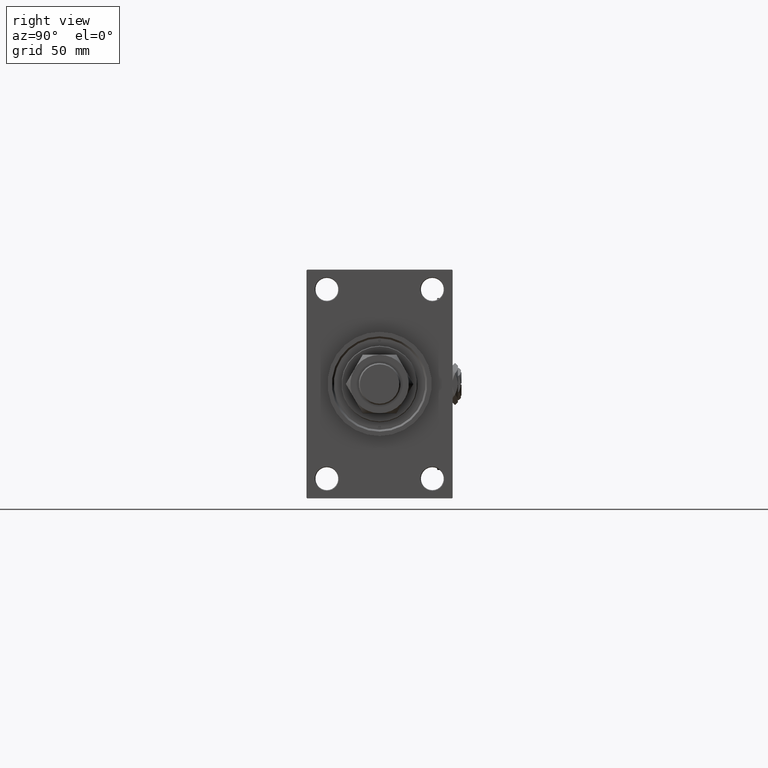
[diagram: clean part render]
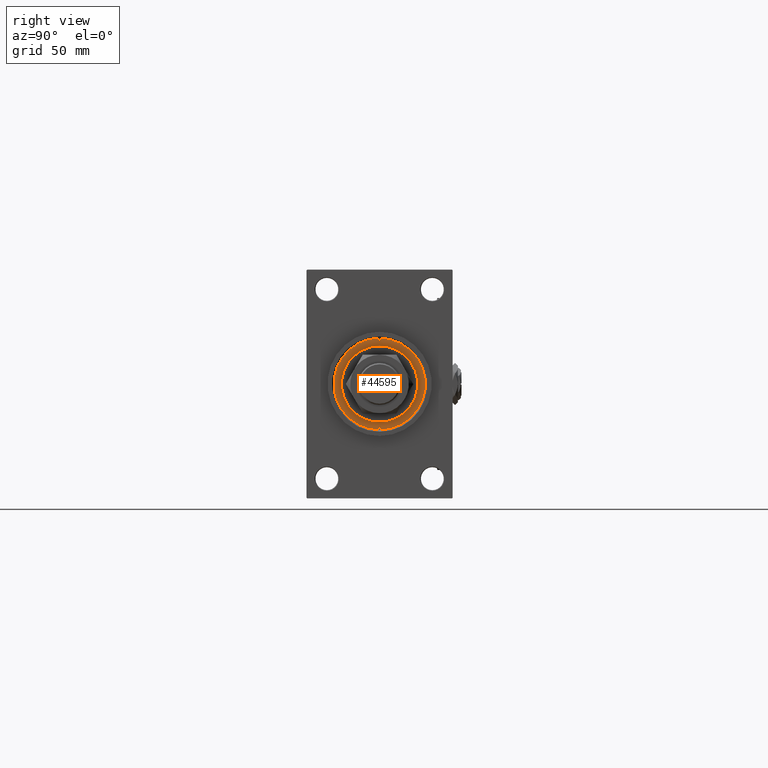
[diagram: same view with one face highlighted and labeled with its STEP entity id]
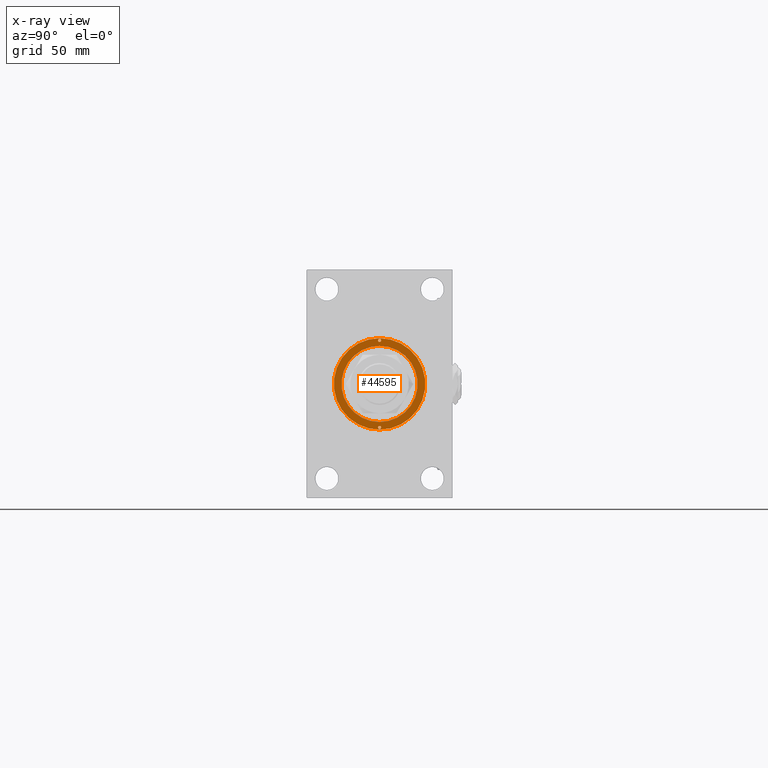
[diagram: x-ray of the same camera — body ghosted, the highlighted face saturated]
A machine part, right view. The second image highlights one B-rep face of the part: STEP entity #44595.
The next image is the same camera in x-ray: the body ghosted, the highlighted face saturated — about 0% of this face is hidden behind the body in this view.
In plain terms, the highlighted planar face has unit normal (1, -0, -0).
Its self-contained STEP definition (entity closure, byte-faithful):
#99 = EDGE_LOOP ( 'NONE', ( #2801, #871 ) ) ;
#619 = CARTESIAN_POINT ( 'NONE',  ( 34.25000000000000000, 0.000000000000000000, 43.25999999999999801 ) ) ;
#871 = ORIENTED_EDGE ( 'NONE', *, *, #39122, .F. ) ;
#1921 = CARTESIAN_POINT ( 'NONE',  ( -34.25000000000000000, 0.000000000000000000, 43.25999999999999801 ) ) ;
#2767 = DIRECTION ( 'NONE',  ( 1.000000000000000000, 0.000000000000000000, 0.000000000000000000 ) ) ;
#2801 = ORIENTED_EDGE ( 'NONE', *, *, #38970, .F. ) ;
#2829 = CARTESIAN_POINT ( 'NONE',  ( -36.00000000000000000, 0.000000000000000000, 43.25999999999999801 ) ) ;
#3392 = EDGE_LOOP ( 'NONE', ( #40292, #30570 ) ) ;
#3524 = CIRCLE ( 'NONE', #33991, 1.250000000000001110 ) ;
#3530 = CARTESIAN_POINT ( 'NONE',  ( 33.00000000000000000, 1.530808498934193050E-16, 43.25999999999999801 ) ) ;
#3589 = CARTESIAN_POINT ( 'NONE',  ( 30.00000000000000000, 3.673940397442059178E-15, 43.25999999999999801 ) ) ;
#4870 = CARTESIAN_POINT ( 'NONE',  ( -34.25000000000000000, 0.000000000000000000, 43.25999999999999801 ) ) ;
#5024 = ORIENTED_EDGE ( 'NONE', *, *, #41049, .F. ) ;
#5936 = CARTESIAN_POINT ( 'NONE',  ( 35.50000000000000711, 0.000000000000000000, 43.25999999999999801 ) ) ;
#6565 = AXIS2_PLACEMENT_3D ( 'NONE', #11411, #53616, #16041 ) ;
#6864 = CARTESIAN_POINT ( 'NONE',  ( 0.000000000000000000, 0.000000000000000000, 43.25999999999999801 ) ) ;
#7592 = FACE_BOUND ( 'NONE', #22785, .T. ) ;
#8064 = VERTEX_POINT ( 'NONE', #9130 ) ;
#8121 = FACE_BOUND ( 'NONE', #43699, .T. ) ;
#8417 = EDGE_CURVE ( 'NONE', #9838, #15411, #3524, .T. ) ;
#8653 = DIRECTION ( 'NONE',  ( 1.000000000000000000, 0.000000000000000000, 0.000000000000000000 ) ) ;
#8684 = DIRECTION ( 'NONE',  ( 1.000000000000000000, 0.000000000000000000, 0.000000000000000000 ) ) ;
#9130 = CARTESIAN_POINT ( 'NONE',  ( -35.50000000000000711, 1.530808498934193050E-16, 43.25999999999999801 ) ) ;
#9838 = VERTEX_POINT ( 'NONE', #5936 ) ;
#10584 = VERTEX_POINT ( 'NONE', #3589 ) ;
#10675 = DIRECTION ( 'NONE',  ( 0.000000000000000000, 0.000000000000000000, 1.000000000000000000 ) ) ;
#10879 = CIRCLE ( 'NONE', #41312, 1.250000000000001110 ) ;
#11411 = CARTESIAN_POINT ( 'NONE',  ( 0.000000000000000000, 0.000000000000000000, 43.25999999999999801 ) ) ;
#13160 = CIRCLE ( 'NONE', #34038, 36.00000000000000000 ) ;
#13668 = DIRECTION ( 'NONE',  ( -0.000000000000000000, -0.000000000000000000, 1.000000000000000000 ) ) ;
#13922 = DIRECTION ( 'NONE',  ( 1.000000000000000000, 0.000000000000000000, 0.000000000000000000 ) ) ;
#13981 = DIRECTION ( 'NONE',  ( 1.000000000000000000, 0.000000000000000000, 0.000000000000000000 ) ) ;
#14482 = VERTEX_POINT ( 'NONE', #24063 ) ;
#14768 = CARTESIAN_POINT ( 'NONE',  ( 0.000000000000000000, 0.000000000000000000, 43.25999999999999801 ) ) ;
#15411 = VERTEX_POINT ( 'NONE', #3530 ) ;
#16041 = DIRECTION ( 'NONE',  ( 1.000000000000000000, 0.000000000000000000, -0.000000000000000000 ) ) ;
#16891 = AXIS2_PLACEMENT_3D ( 'NONE', #1921, #13668, #13922 ) ;
#17809 = DIRECTION ( 'NONE',  ( 1.000000000000000000, 0.000000000000000000, 0.000000000000000000 ) ) ;
#19040 = VERTEX_POINT ( 'NONE', #36045 ) ;
#20511 = CIRCLE ( 'NONE', #50948, 36.00000000000000000 ) ;
#20970 = DIRECTION ( 'NONE',  ( 1.000000000000000000, 0.000000000000000000, 0.000000000000000000 ) ) ;
#22173 = VERTEX_POINT ( 'NONE', #23603 ) ;
#22785 = EDGE_LOOP ( 'NONE', ( #45966, #5024 ) ) ;
#23238 = DIRECTION ( 'NONE',  ( 0.000000000000000000, 0.000000000000000000, 1.000000000000000000 ) ) ;
#23603 = CARTESIAN_POINT ( 'NONE',  ( 36.00000000000000000, 4.408728476930470856E-15, 43.25999999999999801 ) ) ;
#24063 = CARTESIAN_POINT ( 'NONE',  ( -33.00000000000000000, 0.000000000000000000, 43.25999999999999801 ) ) ;
#24223 = FACE_BOUND ( 'NONE', #99, .T. ) ;
#25915 = DIRECTION ( 'NONE',  ( 1.000000000000000000, 0.000000000000000000, 0.000000000000000000 ) ) ;
#28199 = CIRCLE ( 'NONE', #49070, 1.250000000000001110 ) ;
#28272 = CIRCLE ( 'NONE', #49140, 30.00000000000000000 ) ;
#29985 = CARTESIAN_POINT ( 'NONE',  ( 34.25000000000000000, 0.000000000000000000, 43.25999999999999801 ) ) ;
#30527 = AXIS2_PLACEMENT_3D ( 'NONE', #6864, #23238, #13981 ) ;
#30570 = ORIENTED_EDGE ( 'NONE', *, *, #41864, .T. ) ;
#31902 = EDGE_CURVE ( 'NONE', #10584, #19040, #44420, .T. ) ;
#32901 = PLANE ( 'NONE',  #6565 ) ;
#33315 = EDGE_CURVE ( 'NONE', #35692, #22173, #13160, .T. ) ;
#33396 = CIRCLE ( 'NONE', #16891, 1.250000000000001110 ) ;
#33991 = AXIS2_PLACEMENT_3D ( 'NONE', #619, #42285, #17809 ) ;
#34038 = AXIS2_PLACEMENT_3D ( 'NONE', #37549, #37014, #8684 ) ;
#35692 = VERTEX_POINT ( 'NONE', #2829 ) ;
#36045 = CARTESIAN_POINT ( 'NONE',  ( -30.00000000000000000, 0.000000000000000000, 43.25999999999999801 ) ) ;
#37014 = DIRECTION ( 'NONE',  ( 0.000000000000000000, 0.000000000000000000, 1.000000000000000000 ) ) ;
#37252 = DIRECTION ( 'NONE',  ( 0.000000000000000000, 0.000000000000000000, 1.000000000000000000 ) ) ;
#37549 = CARTESIAN_POINT ( 'NONE',  ( 0.000000000000000000, 0.000000000000000000, 43.25999999999999801 ) ) ;
#37551 = DIRECTION ( 'NONE',  ( -0.000000000000000000, -0.000000000000000000, 1.000000000000000000 ) ) ;
#38970 = EDGE_CURVE ( 'NONE', #14482, #8064, #33396, .T. ) ;
#39122 = EDGE_CURVE ( 'NONE', #8064, #14482, #28199, .T. ) ;
#40292 = ORIENTED_EDGE ( 'NONE', *, *, #33315, .T. ) ;
#40793 = FACE_OUTER_BOUND ( 'NONE', #3392, .T. ) ;
#41049 = EDGE_CURVE ( 'NONE', #15411, #9838, #10879, .T. ) ;
#41312 = AXIS2_PLACEMENT_3D ( 'NONE', #29985, #46584, #25915 ) ;
#41864 = EDGE_CURVE ( 'NONE', #22173, #35692, #20511, .T. ) ;
#42115 = ORIENTED_EDGE ( 'NONE', *, *, #31902, .F. ) ;
#42285 = DIRECTION ( 'NONE',  ( -0.000000000000000000, -0.000000000000000000, 1.000000000000000000 ) ) ;
#43699 = EDGE_LOOP ( 'NONE', ( #43860, #42115 ) ) ;
#43764 = EDGE_CURVE ( 'NONE', #19040, #10584, #28272, .T. ) ;
#43860 = ORIENTED_EDGE ( 'NONE', *, *, #43764, .F. ) ;
#44420 = CIRCLE ( 'NONE', #30527, 30.00000000000000000 ) ;
#44595 = ADVANCED_FACE ( 'NONE', ( #24223, #7592, #8121, #40793 ), #32901, .T. ) ;
#45966 = ORIENTED_EDGE ( 'NONE', *, *, #8417, .F. ) ;
#46584 = DIRECTION ( 'NONE',  ( -0.000000000000000000, -0.000000000000000000, 1.000000000000000000 ) ) ;
#49070 = AXIS2_PLACEMENT_3D ( 'NONE', #4870, #37551, #20970 ) ;
#49140 = AXIS2_PLACEMENT_3D ( 'NONE', #53868, #37252, #8653 ) ;
#50948 = AXIS2_PLACEMENT_3D ( 'NONE', #14768, #10675, #2767 ) ;
#53616 = DIRECTION ( 'NONE',  ( 0.000000000000000000, 0.000000000000000000, 1.000000000000000000 ) ) ;
#53868 = CARTESIAN_POINT ( 'NONE',  ( 0.000000000000000000, 0.000000000000000000, 43.25999999999999801 ) ) ;